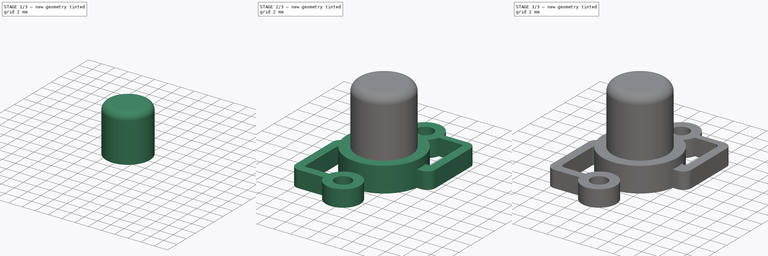
[diagram: build sequence overview — one tinted view per stage of 3, left to right]
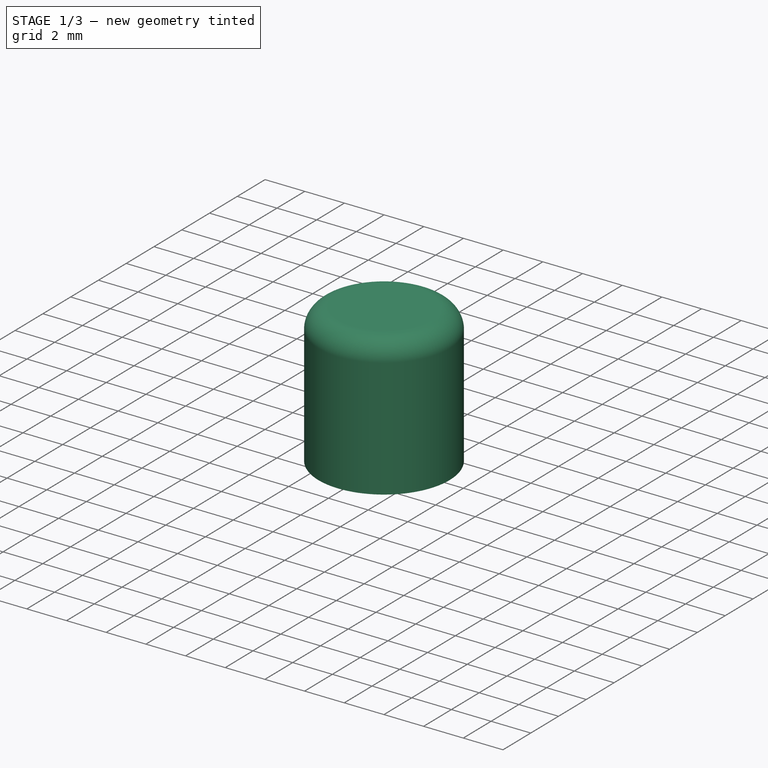
[diagram: stage 1 of 3 — iso view after this stage's code; geometry added in this stage tinted green]
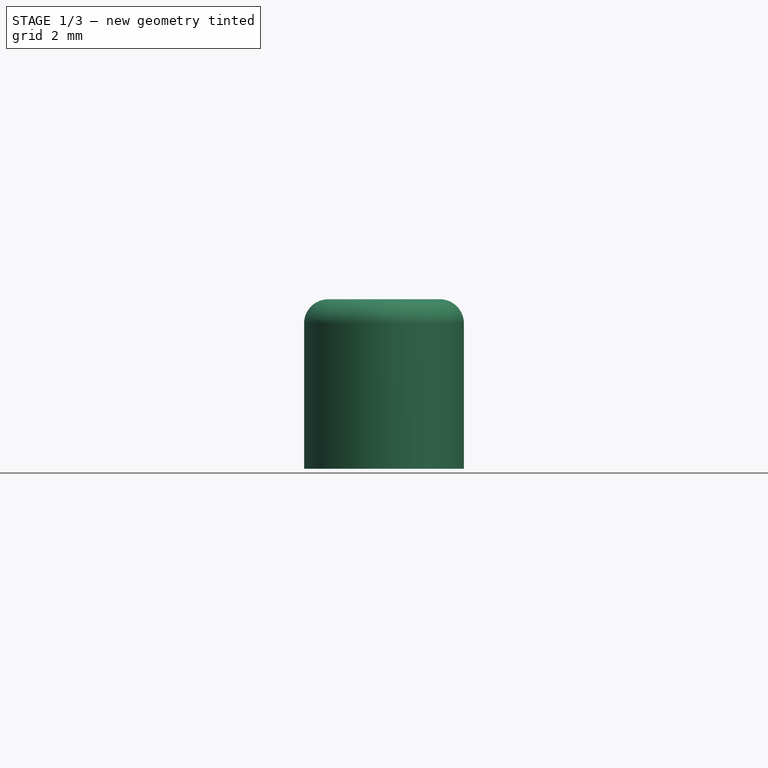
[diagram: stage 1 of 3 — front view after this stage's code; geometry added in this stage tinted green]
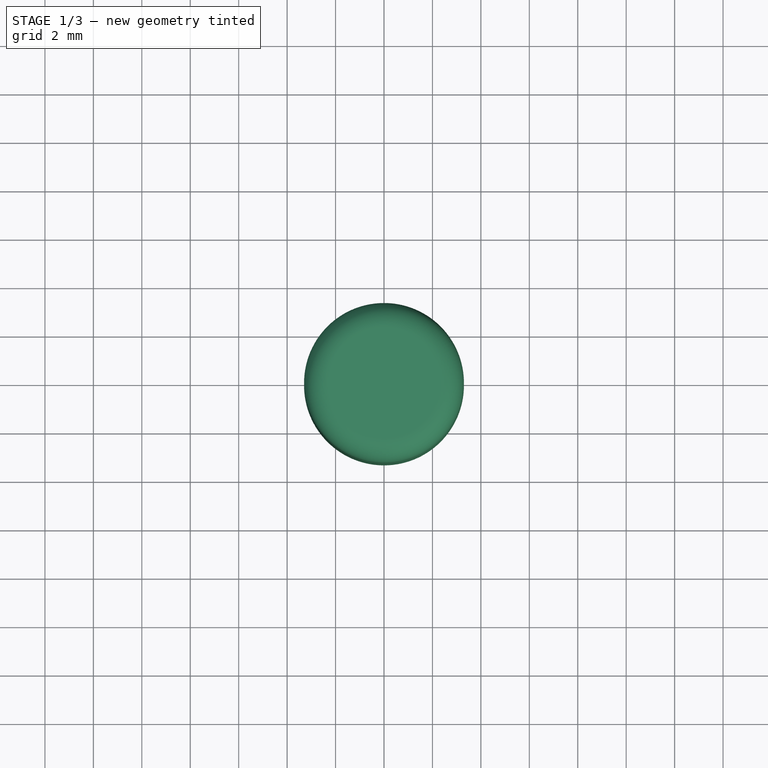
[diagram: stage 1 of 3 — top view after this stage's code; geometry added in this stage tinted green]
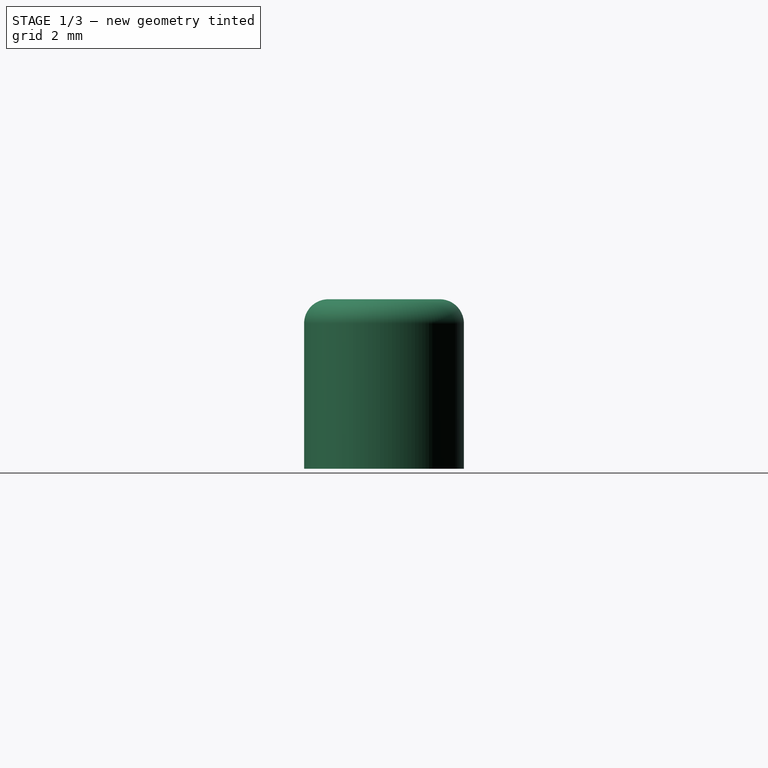
[diagram: stage 1 of 3 — right view after this stage's code; geometry added in this stage tinted green]
FCSTD DOCUMENT  (FreeCAD 0.15R4671 (Git))
Label: PushButton
License: All rights reserved
LicenseURL: http://en.wikipedia.org/wiki/All_rights_reserved
objects: PartDesign::Fillet×4, Sketcher::SketchObject×3, PartDesign::Pad×3, Part::Feature×1
note: 14 computed .brp shape members not serialized (recipe doc carries the construction recipe); baked Part::Feature solids carry a one-line shape summary decoded from their .brp

FEATURE [Sketcher::SketchObject] Sketch
  sketch-geometry (1):
    g0: Circle CenterX=0 CenterY=0 CenterZ=0 NormalX=0 NormalY=0 NormalZ=1 Radius=3.3
  constraints (1):
    c: Radius(g0) = 3.3
FEATURE [PartDesign::Pad] Pad
  Length = 7
  Length2 = 100
  Sketch = -> Sketch
  Type = 0
FEATURE [PartDesign::Fillet] Fillet
  Base = -> Pad [Edge3]
  Radius = 1
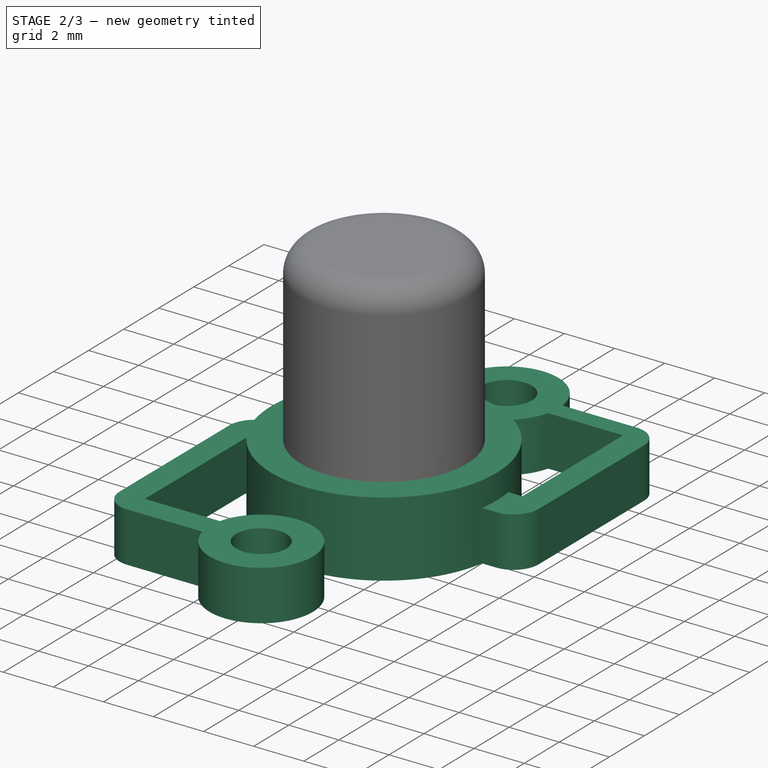
[diagram: stage 2 of 3 — iso view after this stage's code; geometry added in this stage tinted green]
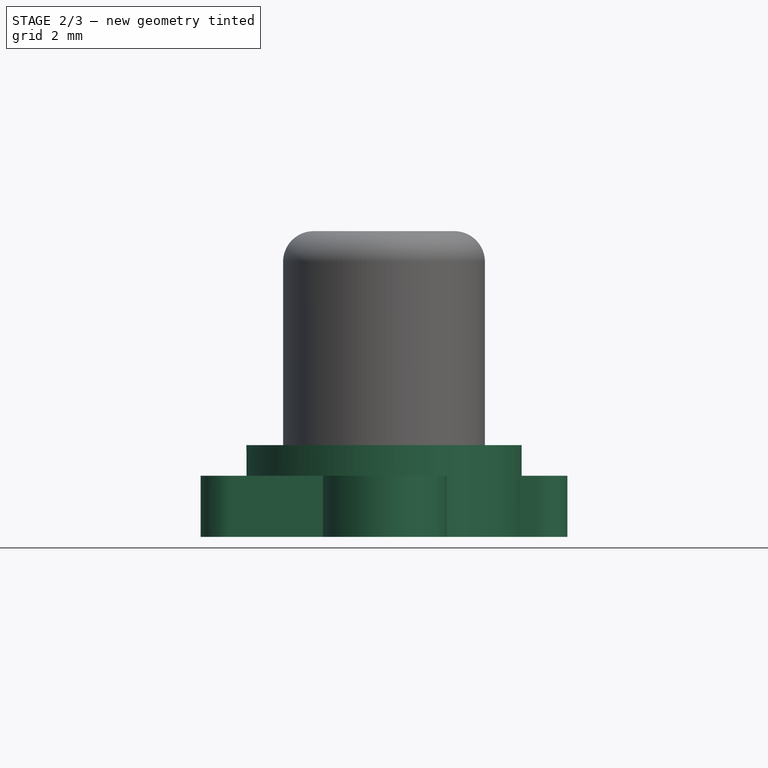
[diagram: stage 2 of 3 — front view after this stage's code; geometry added in this stage tinted green]
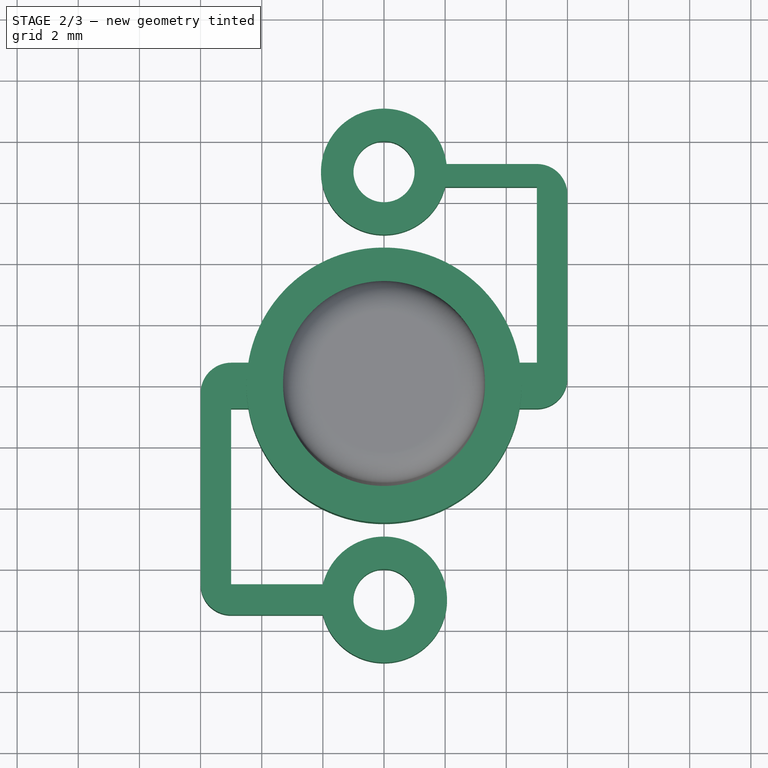
[diagram: stage 2 of 3 — top view after this stage's code; geometry added in this stage tinted green]
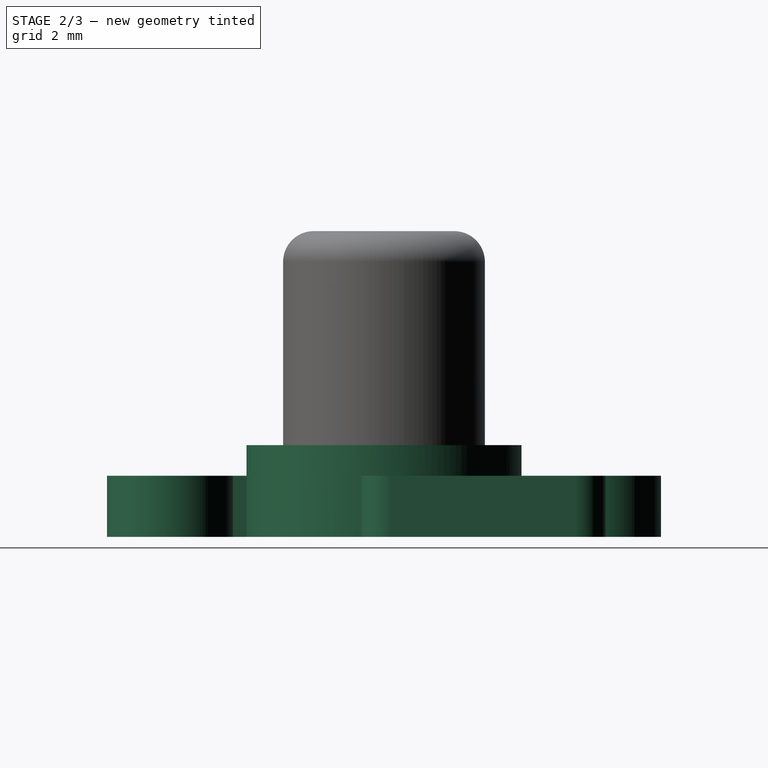
[diagram: stage 2 of 3 — right view after this stage's code; geometry added in this stage tinted green]
FEATURE [Sketcher::SketchObject] Sketch001
  Placement = pos=(0,0,0) rot=(1,0,0;3.14159rad)
  Support = -> Fillet [Face3]
  sketch-geometry (1):
    g0: Circle CenterX=0 CenterY=0 CenterZ=0 NormalX=0 NormalY=0 NormalZ=1 Radius=4.5
FEATURE [PartDesign::Pad] Pad001
  Length = 3
  Length2 = 100
  Sketch = -> Sketch001
  Type = 0
FEATURE [Sketcher::SketchObject] Sketch002
  Placement = pos=(0,0,-3) rot=(1,0,0;3.14159rad)
  Support = -> Pad001 [Face3]
  sketch-geometry (18):
    g0: Circle CenterX=0 CenterY=7 CenterZ=0 NormalX=0 NormalY=0 NormalZ=1 Radius=1
    g1: Circle CenterX=0 CenterY=-7 CenterZ=0 NormalX=0 NormalY=0 NormalZ=1 Radius=1
    g2: LineSegment StartX=-2 StartY=7.5 StartZ=0 EndX=-6 EndY=7.5 EndZ=0
    g3: LineSegment StartX=-4.25 StartY=-0.75 StartZ=0 EndX=-6 EndY=-0.75 EndZ=0
    g4: LineSegment StartX=-6 StartY=-0.75 StartZ=0 EndX=-6 EndY=7.5 EndZ=0
    g5: LineSegment StartX=-5 StartY=6.5 StartZ=0 EndX=-2 EndY=6.5 EndZ=0
    g6: LineSegment StartX=-5 StartY=6.5 StartZ=0 EndX=-5 EndY=0.75 EndZ=0
    g7: LineSegment StartX=-5 StartY=0.75 StartZ=0 EndX=-4.25 EndY=0.75 EndZ=0
    g8: LineSegment StartX=-4.25 StartY=0.75 StartZ=0 EndX=-4.25 EndY=-0.75 EndZ=0
    g9: ArcOfCircle CenterX=0 CenterY=7 CenterZ=0 NormalX=0 NormalY=0 NormalZ=1 Radius=2.06155 StartAngle=3.38657 EndAngle=9.1798
    g10: LineSegment StartX=4 StartY=0.75 StartZ=0 EndX=4 EndY=-0.75 EndZ=0
    g11: LineSegment StartX=4 StartY=-0.75 StartZ=0 EndX=5 EndY=-0.75 EndZ=0
    g12: LineSegment StartX=5 StartY=-0.75 StartZ=0 EndX=5 EndY=-6.5 EndZ=0
    g13: LineSegment StartX=5 StartY=-6.5 StartZ=0 EndX=2 EndY=-6.5 EndZ=0
    g14: LineSegment StartX=2.04634 StartY=-7.25 StartZ=0 EndX=6 EndY=-7.25 EndZ=0
    g15: LineSegment StartX=6 StartY=-7.25 StartZ=0 EndX=6 EndY=0.75 EndZ=0
    g16: LineSegment StartX=6 StartY=0.75 StartZ=0 EndX=4 EndY=0.75 EndZ=0
    g17: ArcOfCircle CenterX=0 CenterY=-7 CenterZ=0 NormalX=0 NormalY=0 NormalZ=1 Radius=2.06155 StartAngle=0.244979 EndAngle=6.16162
  constraints (25):
    c: Radius(g0) = 1
    c: Radius(g1) = 1
    c: DistanceY(g-1,g0) = 7
    c: DistanceY(g-1,g1) = -7
    c: Horizontal(g2)
    c: Coincident(g3,g4)
    c: Horizontal(g3)
    c: Vertical(g4)
    c: Coincident(g2,g4)
    c: Coincident(g7,g8)
    c: Coincident(g3,g8)
    c: Coincident(g5,g6)
    c: Coincident(g10,g11)
    c: Coincident(g11,g12)
    c: Coincident(g12,g13)
    c: Coincident(g14,g15)
    c: Coincident(g15,g16)
    c: Coincident(g10,g16)
    c: Coincident(g14,g17)
    c: Coincident(g13,g17)
    c: Vertical(g12)
    c: Vertical(g15)
    c: Coincident(g6,g7)
    c: Coincident(g2,g9)
    c: Coincident(g5,g9)
FEATURE [PartDesign::Pad] Pad002
  Length = 2
  Length2 = 100
  Reversed = true
  Sketch = -> Sketch002
  Type = 0
FEATURE [PartDesign::Fillet] Fillet001
  Base = -> Pad002 [Edge26,Edge38,Edge47,Edge52]
  Radius = 1
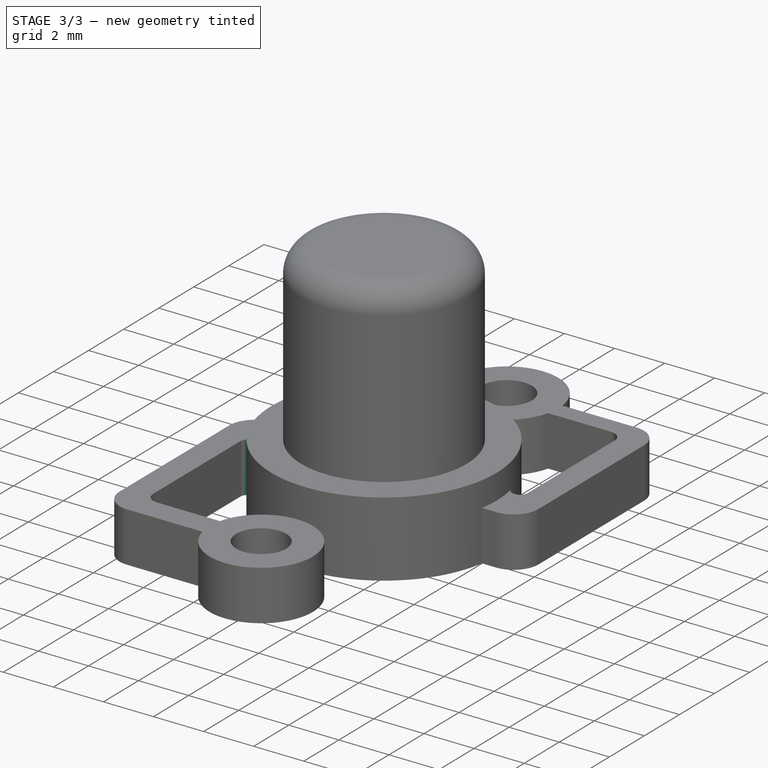
[diagram: stage 3 of 3 — iso view after this stage's code; geometry added in this stage tinted green]
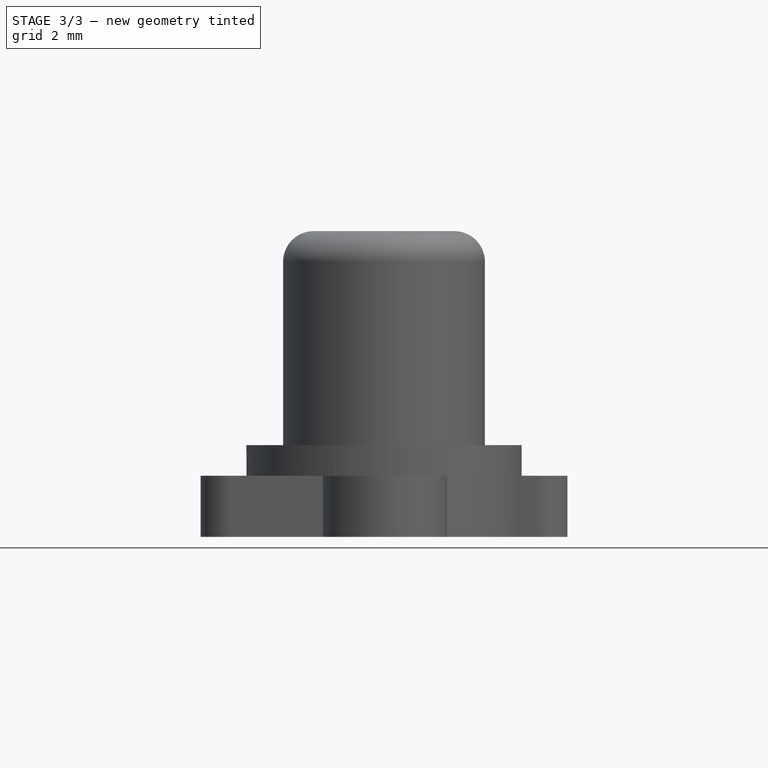
[diagram: stage 3 of 3 — front view after this stage's code; geometry added in this stage tinted green]
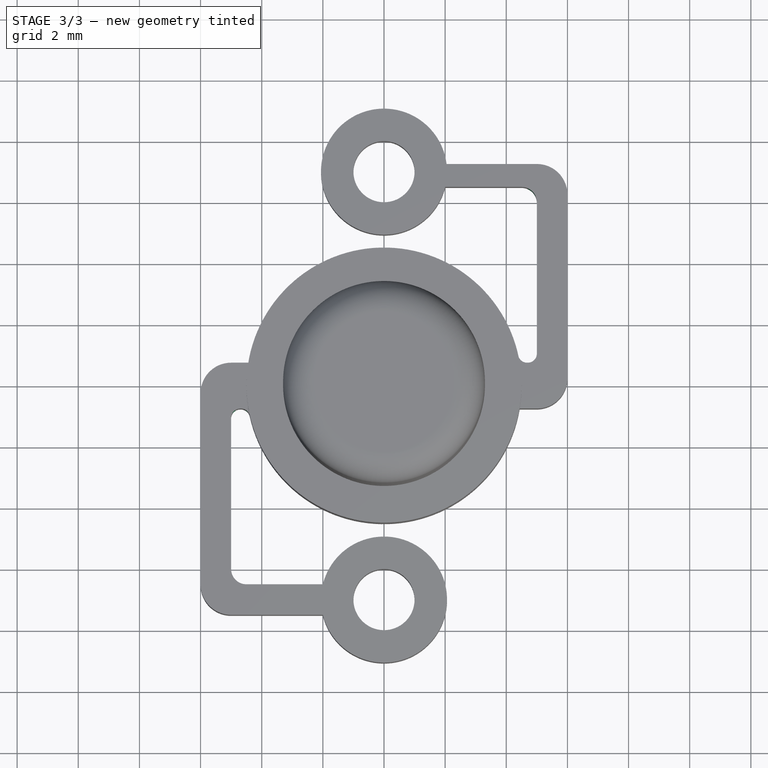
[diagram: stage 3 of 3 — top view after this stage's code; geometry added in this stage tinted green]
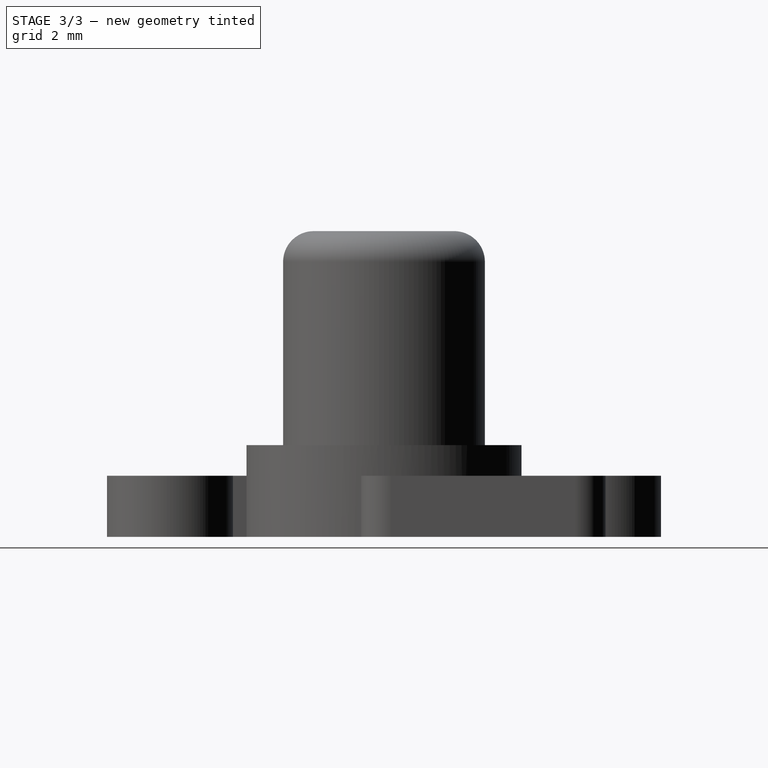
[diagram: stage 3 of 3 — right view after this stage's code; geometry added in this stage tinted green]
FEATURE [PartDesign::Fillet] Fillet002
  Base = -> Fillet001 [Edge22,Edge69]
  Radius = 0.5
FEATURE [PartDesign::Fillet] Fillet003
  Base = -> Fillet002 [Edge68,Edge34,Edge22,Edge26]
  Radius = 0.3
FEATURE [Part::Feature] Fillet003001  label="PushButton"
  shape: bbox 12 x 18.12 x 10 mm, 34 faces (baked)
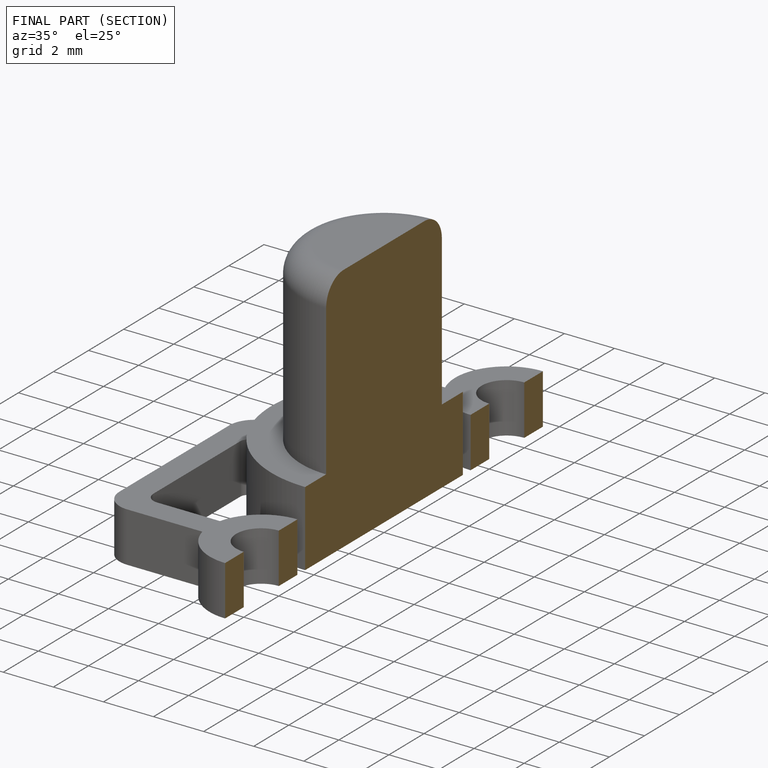
[diagram: finished part — half-section view (interior)]
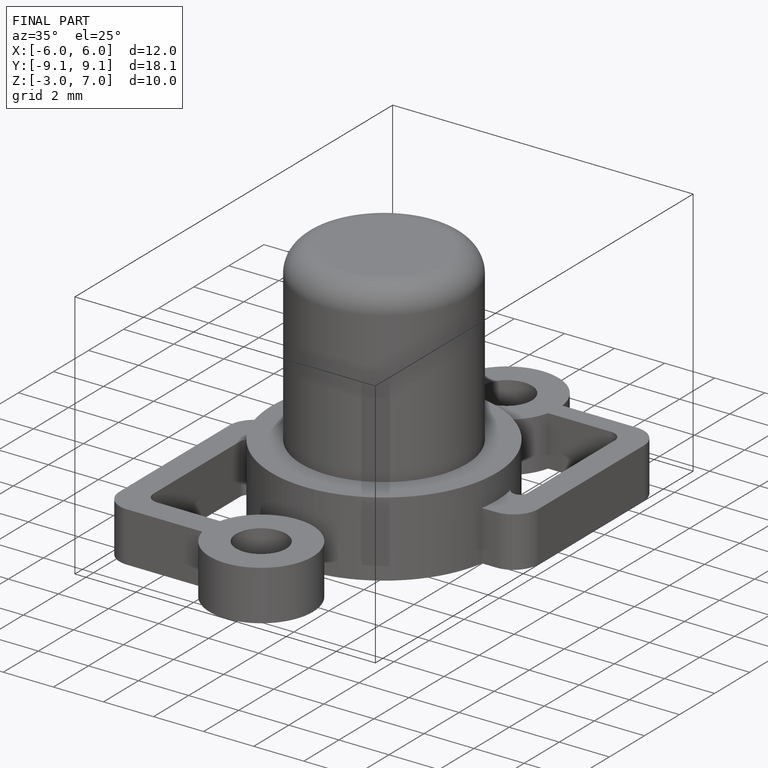
[diagram: finished part — iso view with bounding-box wireframe]
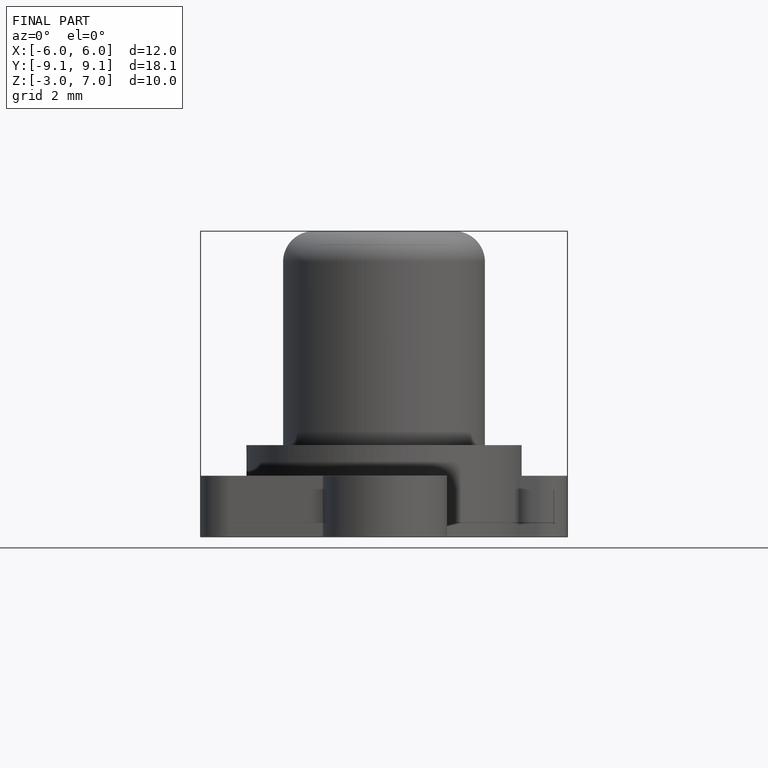
[diagram: finished part — front view with bounding-box wireframe]
